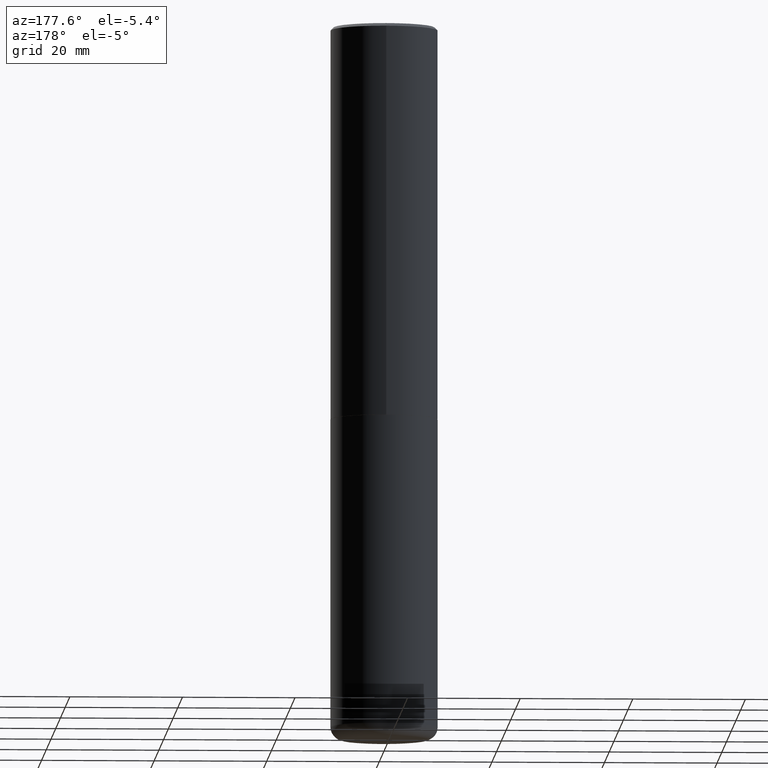
[diagram: clean part render]
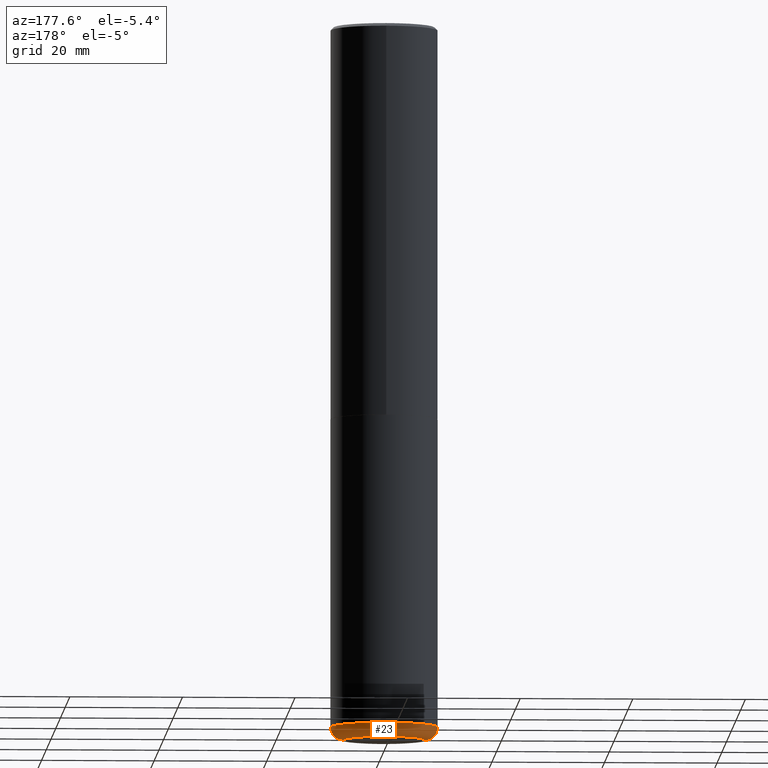
[diagram: same view with one face highlighted and labeled with its STEP entity id]
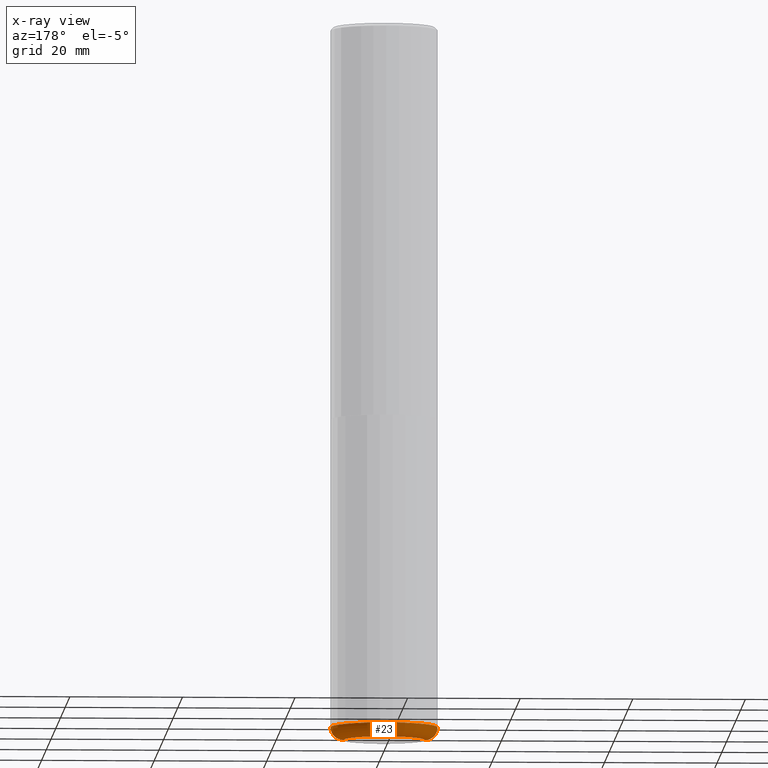
[diagram: x-ray of the same camera — body ghosted, the highlighted face saturated]
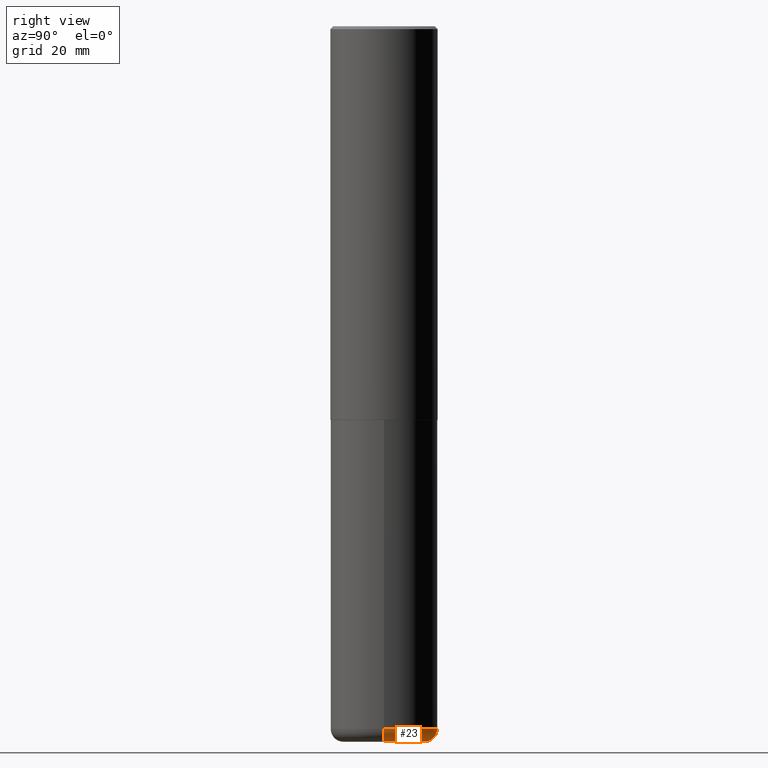
[diagram: same view with one face highlighted and labeled with its STEP entity id]
A machine part, auxiliary view. The second image highlights one B-rep face of the part: STEP entity #23.
The next image is the same camera in x-ray: the body ghosted, the highlighted face saturated — about 0% of this face is hidden behind the body in this view.
A second angle (right view) of the same face is appended — the face is thin or edge-on in the first view.
In plain terms, the highlighted toroidal blend (fillet) surface has major radius 7.239 mm and minor (blend) radius 2.286 mm.
Its self-contained STEP definition (entity closure, byte-faithful):
#2 = DIRECTION ( 'NONE',  ( 1.000000000000000000, -6.982962677686269077E-15, 0.000000000000000000 ) ) ;
#5 = ORIENTED_EDGE ( 'NONE', *, *, #307, .F. ) ;
#11 = DIRECTION ( 'NONE',  ( -1.000000000000000000, 7.105427357600996337E-15, 0.000000000000000000 ) ) ;
#12 = CIRCLE ( 'NONE', #363, 0.08999999999999992728 ) ;
#13 = EDGE_LOOP ( 'NONE', ( #263, #389, #5, #268 ) ) ;
#22 = DIRECTION ( 'NONE',  ( 1.000000000000000000, -6.982962677686269077E-15, 4.883557194083113462E-29 ) ) ;
#23 = ADVANCED_FACE ( 'NONE', ( #194 ), #217, .T. ) ;
#25 = AXIS2_PLACEMENT_3D ( 'NONE', #124, #88, #22 ) ;
#35 = DIRECTION ( 'NONE',  ( 1.000000000000000000, -6.982962677686266711E-15, 0.000000000000000000 ) ) ;
#64 = VERTEX_POINT ( 'NONE', #344 ) ;
#73 = DIRECTION ( 'NONE',  ( 1.000000000000000000, -6.982962677686273810E-15, 0.000000000000000000 ) ) ;
#80 = DIRECTION ( 'NONE',  ( 7.105427357601001859E-15, 1.000000000000000000, -3.491481338843145583E-15 ) ) ;
#88 = DIRECTION ( 'NONE',  ( -2.445468806185136597E-29, 3.491481338843145583E-15, 1.000000000000000000 ) ) ;
#100 = DIRECTION ( 'NONE',  ( -2.445468806185136597E-29, 3.491481338843145583E-15, 1.000000000000000000 ) ) ;
#101 = CIRCLE ( 'NONE', #121, 0.08999999999999992728 ) ;
#104 = VERTEX_POINT ( 'NONE', #257 ) ;
#121 = AXIS2_PLACEMENT_3D ( 'NONE', #232, #204, #73 ) ;
#124 = CARTESIAN_POINT ( 'NONE',  ( 1.200725183836902132E-28, -1.714317337371984662E-14, -4.910000000000000142 ) ) ;
#127 = EDGE_CURVE ( 'NONE', #104, #64, #230, .T. ) ;
#189 = EDGE_CURVE ( 'NONE', #104, #366, #101, .T. ) ;
#194 = FACE_OUTER_BOUND ( 'NONE', #13, .T. ) ;
#199 = CIRCLE ( 'NONE', #211, 0.3749999999999999445 ) ;
#204 = DIRECTION ( 'NONE',  ( -6.982962677686266711E-15, -1.000000000000000000, 3.491481338843145583E-15 ) ) ;
#206 = VERTEX_POINT ( 'NONE', #358 ) ;
#211 = AXIS2_PLACEMENT_3D ( 'NONE', #384, #100, #2 ) ;
#217 = TOROIDAL_SURFACE ( 'NONE', #25, 0.2850000000000000311, 0.08999999999999989952 ) ;
#230 = CIRCLE ( 'NONE', #354, 0.2850000000000000311 ) ;
#232 = CARTESIAN_POINT ( 'NONE',  ( 0.2850000000000000311, -1.913331773686043011E-14, -4.910000000000000142 ) ) ;
#245 = CARTESIAN_POINT ( 'NONE',  ( -0.2850000000000000311, -1.511812657680356008E-14, -4.910000000000000142 ) ) ;
#257 = CARTESIAN_POINT ( 'NONE',  ( 0.2850000000000000311, -1.944755105735631653E-14, -5.000000000000000000 ) ) ;
#259 = DIRECTION ( 'NONE',  ( -2.445468806185136597E-29, 3.491481338843145583E-15, 1.000000000000000000 ) ) ;
#263 = ORIENTED_EDGE ( 'NONE', *, *, #127, .T. ) ;
#268 = ORIENTED_EDGE ( 'NONE', *, *, #189, .F. ) ;
#307 = EDGE_CURVE ( 'NONE', #366, #206, #199, .T. ) ;
#310 = CARTESIAN_POINT ( 'NONE',  ( 1.222734403092568523E-28, -1.745740669421572989E-14, -5.000000000000000000 ) ) ;
#332 = CARTESIAN_POINT ( 'NONE',  ( 0.3749999999999999445, -1.976178437785219664E-14, -4.910000000000000142 ) ) ;
#344 = CARTESIAN_POINT ( 'NONE',  ( -0.2850000000000000311, -1.495549900595945556E-14, -5.000000000000000000 ) ) ;
#354 = AXIS2_PLACEMENT_3D ( 'NONE', #310, #259, #35 ) ;
#358 = CARTESIAN_POINT ( 'NONE',  ( -0.3749999999999999445, -1.447863811461947092E-14, -4.910000000000000142 ) ) ;
#363 = AXIS2_PLACEMENT_3D ( 'NONE', #245, #80, #11 ) ;
#366 = VERTEX_POINT ( 'NONE', #332 ) ;
#384 = CARTESIAN_POINT ( 'NONE',  ( 1.200725183836902132E-28, -1.714317337371984662E-14, -4.910000000000000142 ) ) ;
#388 = EDGE_CURVE ( 'NONE', #64, #206, #12, .T. ) ;
#389 = ORIENTED_EDGE ( 'NONE', *, *, #388, .T. ) ;